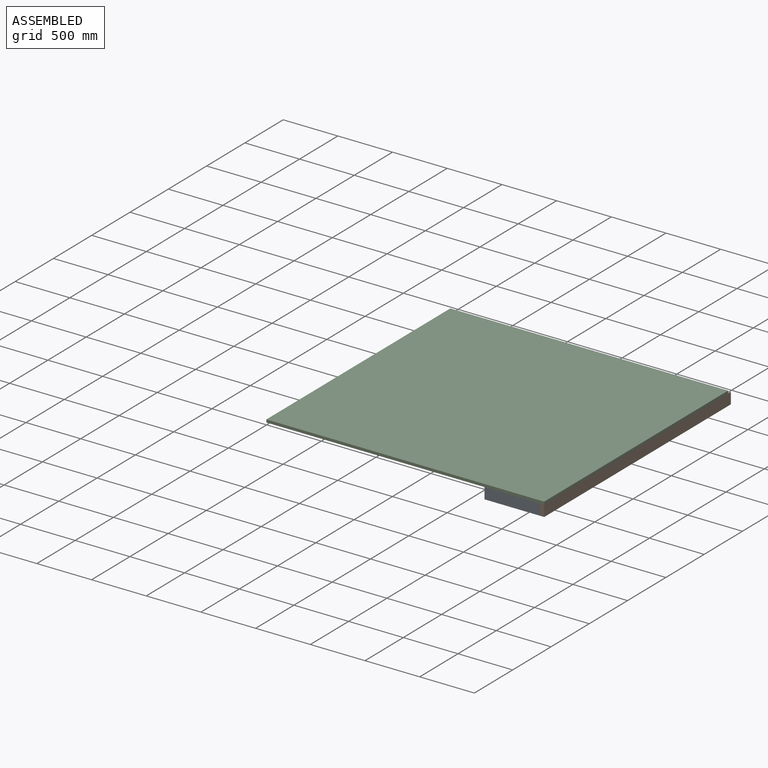
[diagram: assembled view]
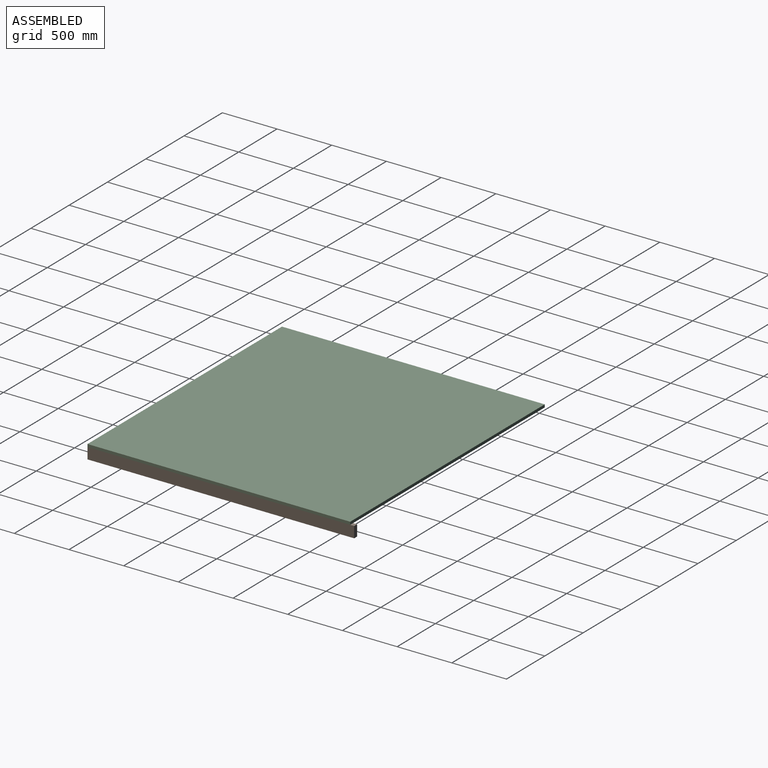
[diagram: assembled view, second angle]
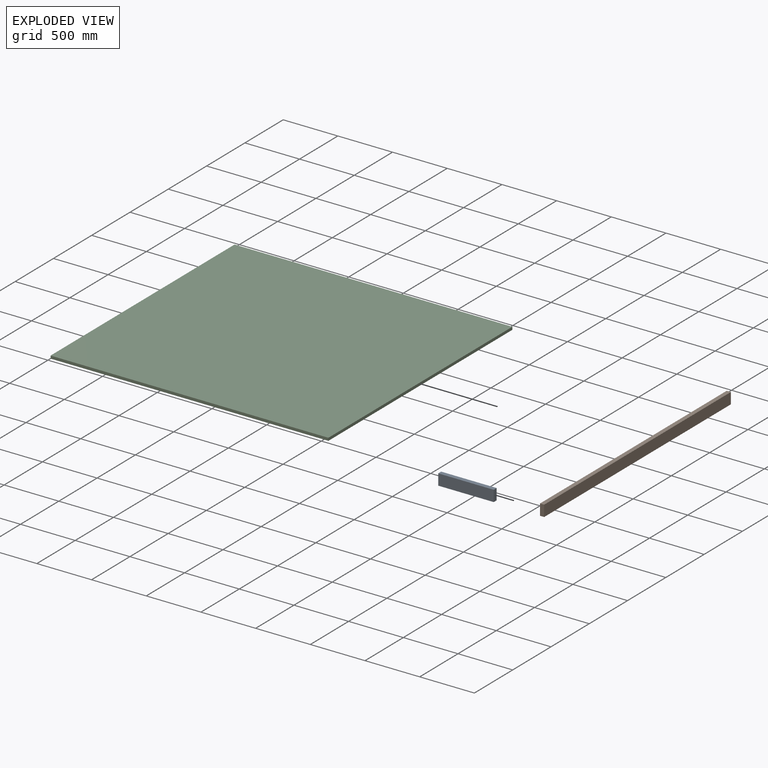
[diagram: exploded view]
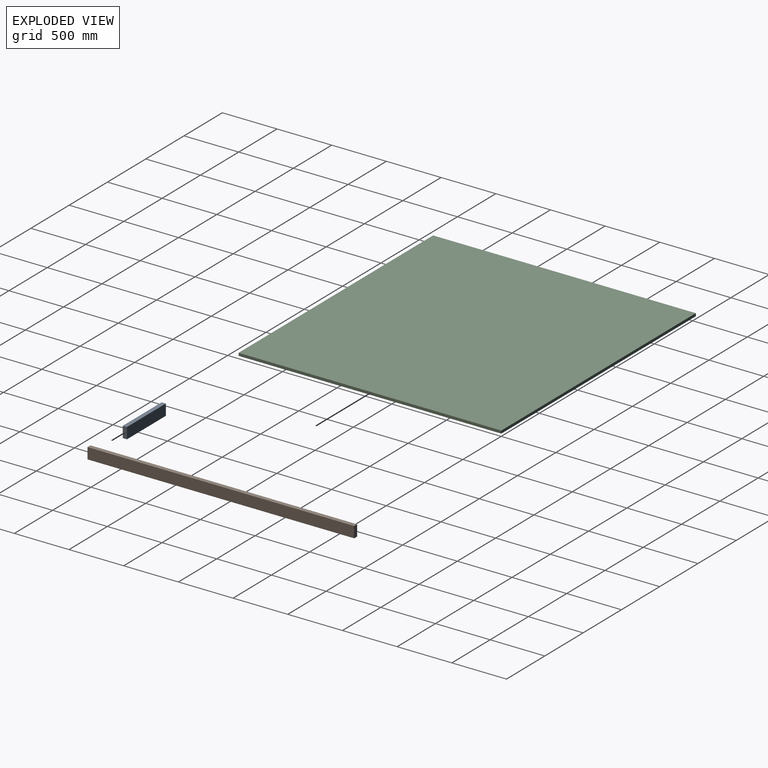
[diagram: exploded view, second angle]
ASSEMBLY  parts=3 mates=2
PART A: 6 faces, bbox 508x38.1x101.6 mm
  f0: plane 101.6x38.1mm, normal (1,0,0), area 3871mm2, adj f1,f3,f4,f5
  f1: plane 508x101.6mm, normal (0,1,0), area 51612.8mm2, adj f0,f2,f4,f5
  f2: plane 101.6x38.1mm, normal (-1,0,0), area 3871mm2, adj f1,f3,f4,f5
  f3: plane 508x101.6mm, normal (0,-1,0), area 51612.8mm2, adj f0,f2,f4,f5
  f4: plane 508x38.1mm, normal (0,0,-1), area 19354.8mm2, adj f0,f1,f2,f3
  f5: plane 508x38.1mm, normal (0,0,1), area 19354.8mm2, adj f0,f1,f2,f3
PART B: 6 faces, bbox 38.1x2438.4x101.6 mm
  f0: plane 2438.4x101.6mm, normal (1,0,0), area 247741.4mm2, adj f1,f3,f4,f5
  f1: plane 101.6x38.1mm, normal (0,1,0), area 3871mm2, adj f0,f2,f4,f5
  f2: plane 2438.4x101.6mm, normal (-1,0,0), area 247741.4mm2, adj f1,f3,f4,f5
  f3: plane 101.6x38.1mm, normal (0,-1,0), area 3871mm2, adj f0,f2,f4,f5
  f4: plane 2438.4x38.1mm, normal (0,0,-1), area 92903mm2, adj f0,f1,f2,f3
  f5: plane 2438.4x38.1mm, normal (0,0,1), area 92903mm2, adj f0,f1,f2,f3
PART C: 6 faces, bbox 2540x2402.2x25.4 mm
  f0: plane 2402.16x25.4mm, normal (-1,0,0), area 61014.8mm2, adj f1,f3,f4,f5
  f1: plane 2540x25.4mm, normal (0,-1,0), area 64516mm2, adj f0,f2,f4,f5
  f2: plane 2402.16x25.4mm, normal (1,0,0), area 61014.8mm2, adj f1,f3,f4,f5
  f3: plane 2540x25.4mm, normal (0,1,0), area 64516mm2, adj f0,f2,f4,f5
  f4: plane 2540x2402.16mm, normal (0,0,1), area 6101477.1mm2, adj f0,f1,f2,f3
  f5: plane 2540x2402.16mm, normal (0,0,-1), area 6101477.1mm2, adj f0,f1,f2,f3
PLACE A t=(1537.33,-1159.46,0)mm
PLACE B t=(1132.79,-1160.79,0)mm
PLACE C at identity fixed
MATE fastened B.f0 <-> C.f2  axis (1,0,0) through (1204.44,-1238.19,0)mm
MATE fastened A.f3 <-> B.f3  axis (0,-1,0) through (1166.34,-1238.19,0)mm
